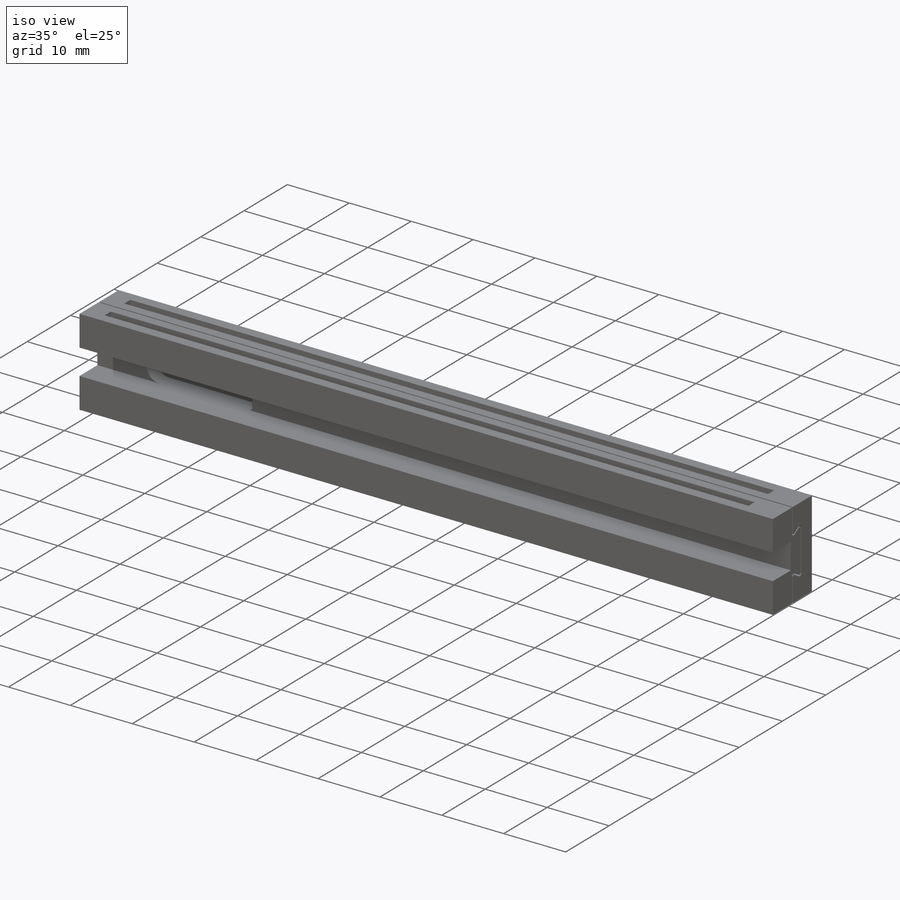
[diagram: iso view]
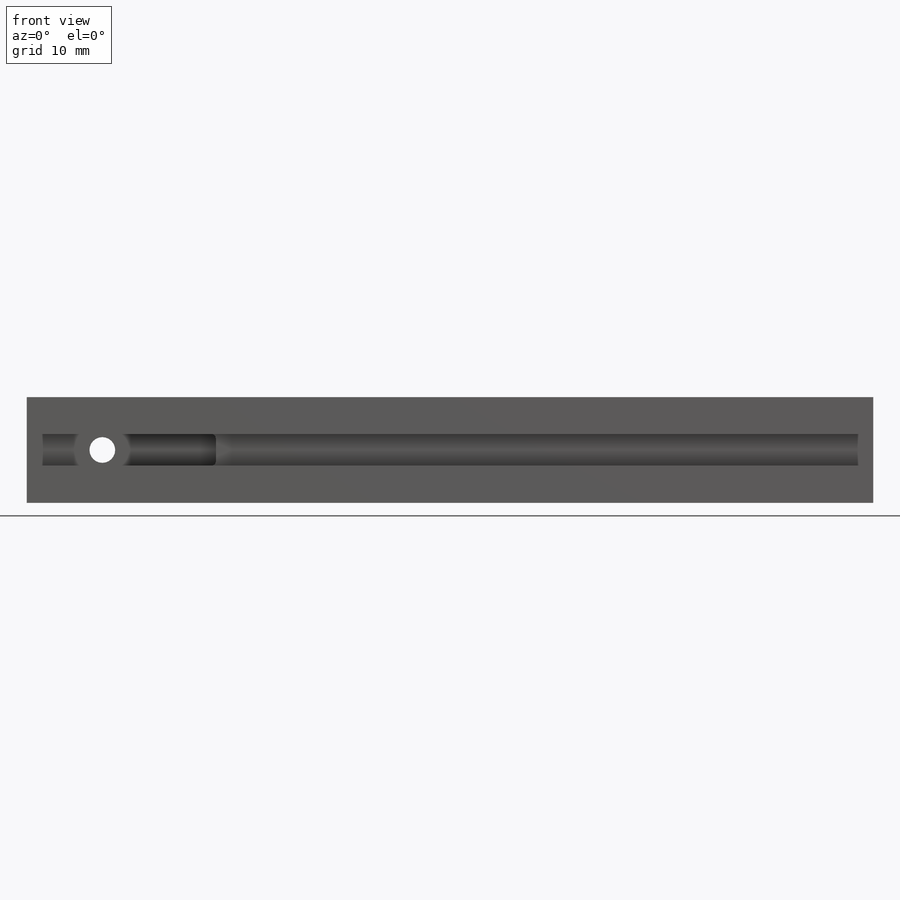
[diagram: front view]
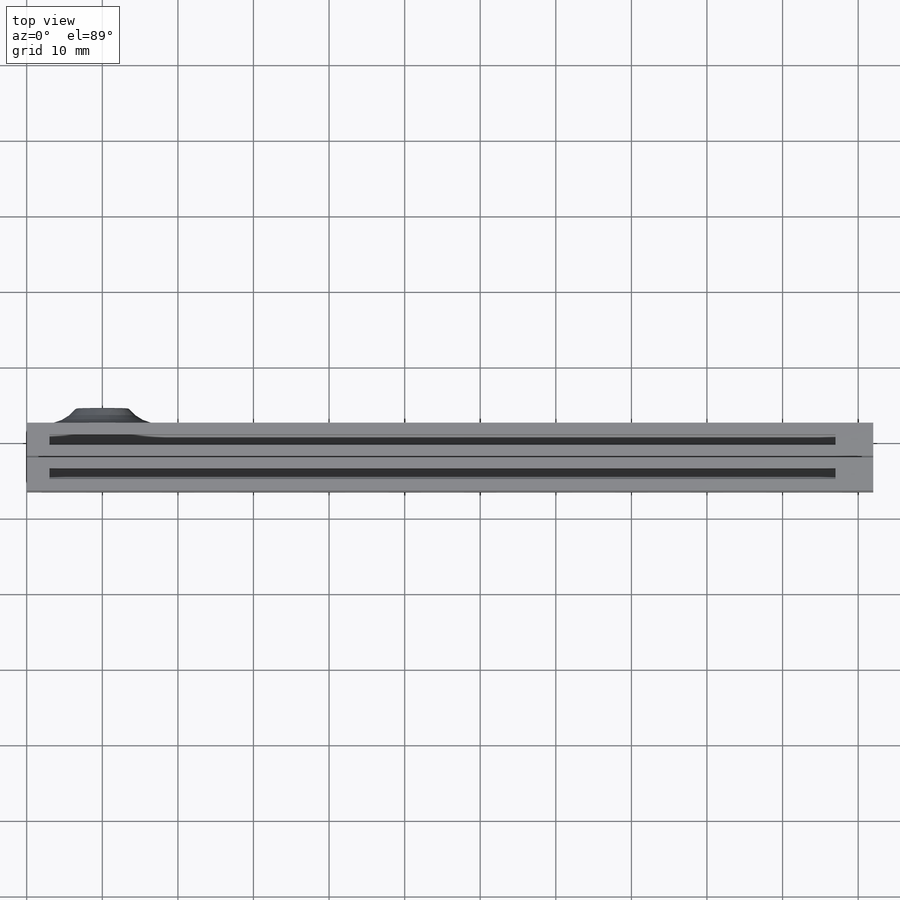
[diagram: top view]
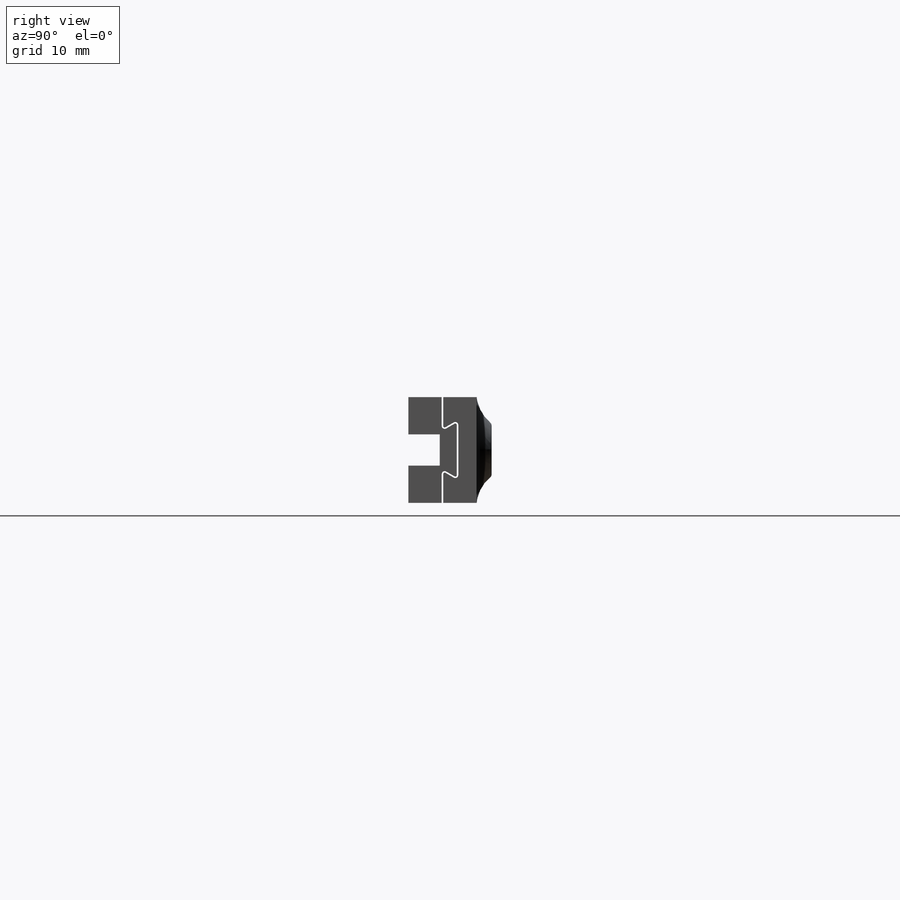
[diagram: right view]
SOLIDWORKS PART (.sldprt)
format: sldprt  version: not decoded by parser v0  size: 421,376 bytes
history: native  units: mm
features: sketch x11, fillet x9, extrude x7, cut_extrude x4, material x1, plane x1, chamfer x1 (+13 scaffold rows collapsed)
feature tree (47):
  scaffold x13  (default folders/planes/origin — collapsed)
  material  "Material <not specified>"
  sketch  "Sketch1"  dims[c1.D9=~1.680832mm c1.D1=7.0mm c1.D2=~2.005976mm c2.D2=60.0deg c2.D3=4.5mm c2.D4=~13.126569mm c3.D3=4.4mm c3.D4=4.5mm c3.D5=3.0mm c3.D6=0.1mm c3.D8=4.4mm c4.D3=9.0mm c4.D8=3.1mm c4.D5=4.5mm c5.D8=6.5mm c5.D9=3.0mm c5.D7=0.2mm]
  extrude  "Boss-Extrude1"  Depth=112mm
  extrude  "Boss-Extrude2"  [1 undecoded]
  sketch  "Sketch1<5>"  dims[D1=112.0mm]
  fillet  "Fillet1"  Radius=0.4mm
  fillet  "Fillet2"  Radius=0.2mm
  fillet  "Fillet3"  Radius=0.2mm
  fillet  "Fillet4"  Radius=0.4mm
  plane  "Plane1"
  sketch  "Sketch3"  dims[D1=17.0mm D2=2.0mm D3=1.0mm]
  extrude  "Boss-Extrude5"  Depth=0.1mm
  extrude  "Boss-Extrude7"  [1 undecoded]
  sketch  "Sketch3<3>"  dims[D19=0.1mm]
  sketch  "Sketch4"  dims[D1=4.15mm D2=4.15mm]
  cut_extrude  "Cut-Extrude2"  [1 undecoded]
  sketch  "Sketch6"  dims[D1=1.4mm D2=2.25mm D3=0.0mm]
  cut_extrude  "Cut-Extrude4"  Depth=104mm
  sketch  "Sketch7"
  extrude  "Boss-Extrude8"  Depth=1mm
  sketch  "Sketch8"
  extrude  "Boss-Extrude9"  Depth=1mm
  sketch  "Sketch9"  dims[D1=3.4mm D2=10.0mm]
  cut_extrude  "Cut-Extrude5"  Depth=5mm
  sketch  "Sketch10"  dims[D1=7.0mm D2=0.0mm]
  extrude  "Boss-Extrude10"  Depth=2mm
  fillet  "Fillet5"  Radius=5mm
  fillet  "Fillet7"  Radius=0.5mm
  chamfer  "Chamfer1"  Distance=0.5mm Angle=45deg
  sketch  "Sketch11"  dims[c1.D1=4.15mm c1.D2=~3.911363mm c2.D1=9.5mm c2.D2=10.0mm c2.D3=15.0mm]
  cut_extrude  "Cut-Extrude6"  Depth=5mm
  fillet  "Fillet8"  Radius=0.5mm
  fillet  "Fillet9"  Radius=0.4mm
  fillet  "Fillet10"  Radius=0.4mm
decode coverage: 27 of 32 modeling features carry decoded parameters
note: ~ marks probable driven/reference dimensions
note: 3 parameter values undecoded
summary: no parameter record found for 3 features
note: suppression state not decoded; provenance and decode notes live in map.json
